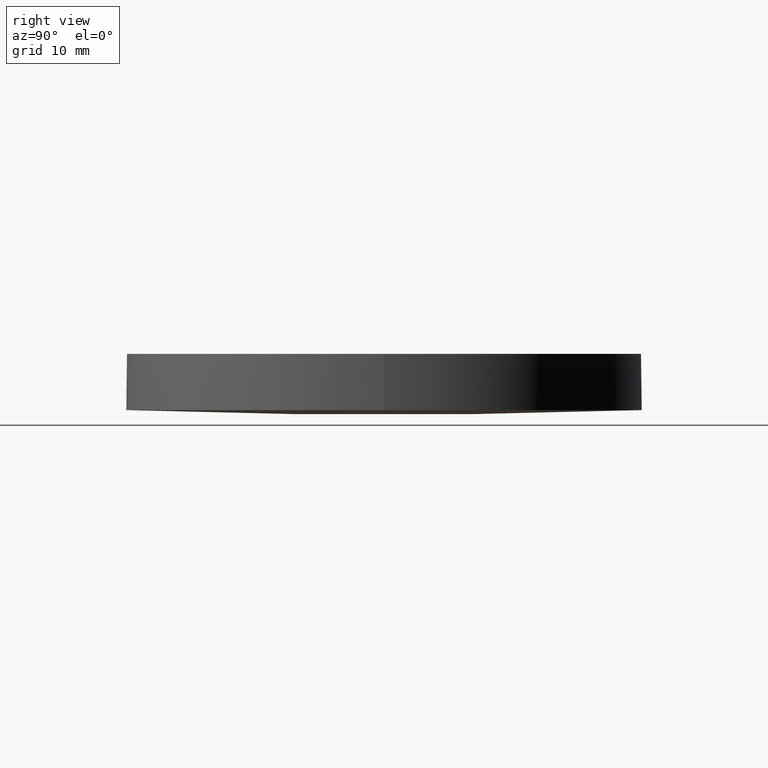
[diagram: clean part render]
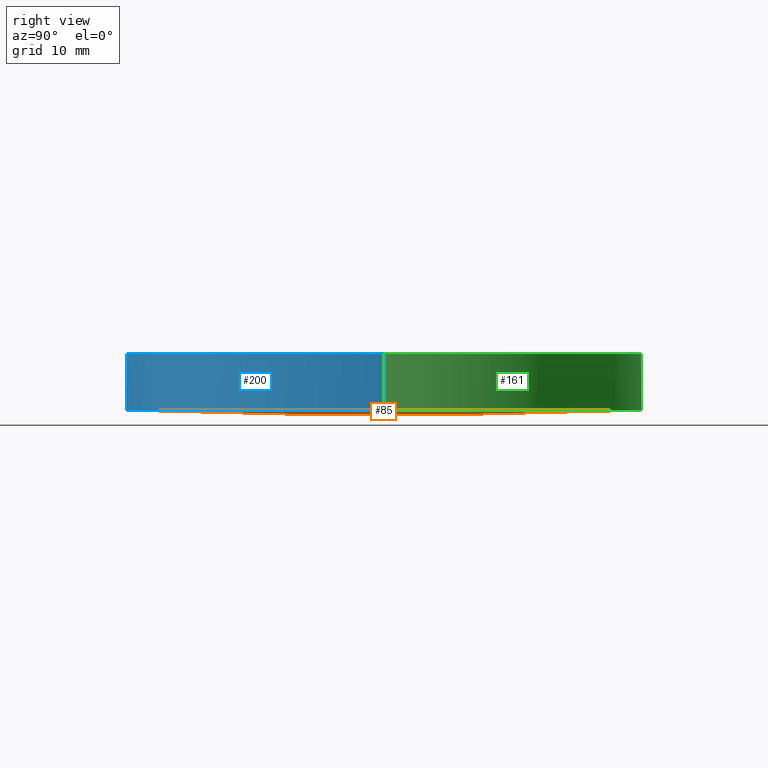
[diagram: same view with three faces highlighted in distinct colors, each labeled with its STEP entity id]
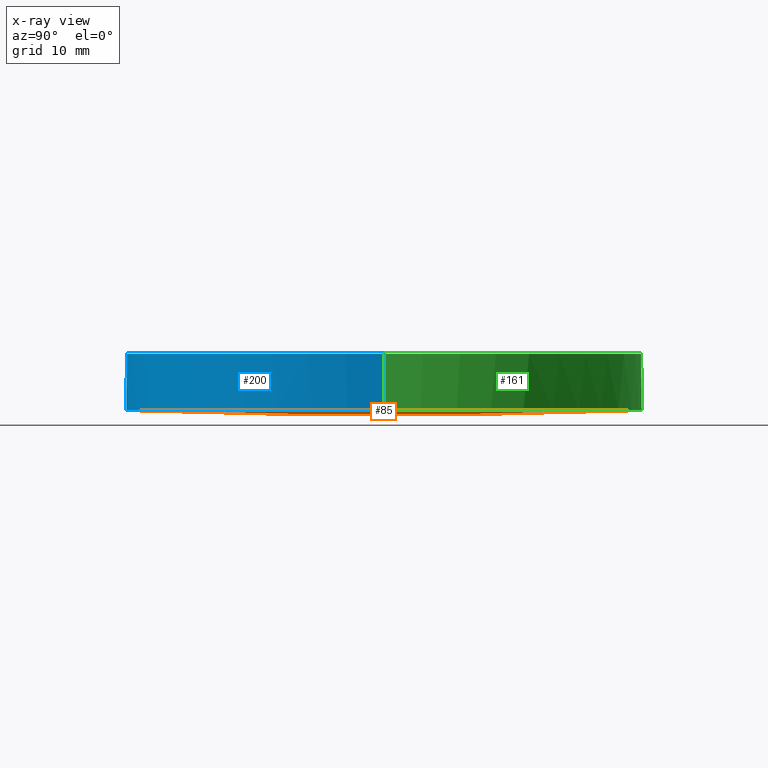
[diagram: x-ray of the same camera — body ghosted, the three highlighted faces saturated]
A machine part, right view with three faces highlighted in distinct colors.
The next image is the same camera in x-ray (body ghosted, the three faces saturated) — at least one of them is partly hidden behind the body in this view.
Their STEP definitions:

[orange] entity #85 — the highlighted face is a freeform B-spline surface patch.
#1 = DIRECTION ( 'NONE',  ( -0.0000000000000000000, -0.0000000000000000000, -1.000000000000000000 ) ) ;
#3 = DIRECTION ( 'NONE',  ( 1.000000000000000000, 0.0000000000000000000, 0.0000000000000000000 ) ) ;
#10 = AXIS2_PLACEMENT_3D ( 'NONE', #166, #26, #24 ) ;
#19 = DIRECTION ( 'NONE',  ( 1.000000000000000000, 0.0000000000000000000, 0.0000000000000000000 ) ) ;
#24 = DIRECTION ( 'NONE',  ( -3.255406916435471100E-016, -1.000000000000000000, -3.109432921510030800E-016 ) ) ;
#25 = AXIS2_PLACEMENT_3D ( 'NONE', #107, #1, #19 ) ;
#26 = DIRECTION ( 'NONE',  ( 1.000000000000000000, -3.255406916435470100E-016, -2.813334110390849800E-016 ) ) ;
#33 = CARTESIAN_POINT ( 'NONE',  ( 25.53577561328555500, -25.70466906950983700, 0.9197954570984757700 ) ) ;
#42 = VERTEX_POINT ( 'NONE', #84 ) ;
#49 = CARTESIAN_POINT ( 'NONE',  ( 17.04175489891612100, -8.571926451094199700, -0.001841013024078599400 ) ) ;
#52 = CIRCLE ( 'NONE', #25, 25.39999999999999900 ) ;
#56 = VERTEX_POINT ( 'NONE', #194 ) ;
#73 = CARTESIAN_POINT ( 'NONE',  ( 9.992007221626412800E-016, 4.884981308350691100E-015, 0.4518724189069909800 ) ) ;
#80 = CARTESIAN_POINT ( 'NONE',  ( 17.04175489891612800, 8.571926451094526600, -0.001841013024075671600 ) ) ;
#81 = CARTESIAN_POINT ( 'NONE',  ( 8.514197117048384600, -25.70466906950983700, 0.4627812480441060900 ) ) ;
#83 = ORIENTED_EDGE ( 'NONE', *, *, #110, .T. ) ;
#84 = CARTESIAN_POINT ( 'NONE',  ( -2.197407186387518400E-014, 25.39999999999935200, 0.4518724189069877600 ) ) ;
#85 = ADVANCED_FACE ( 'NONE', ( #209 ), #160, .T. ) ;
#95 = AXIS2_PLACEMENT_3D ( 'NONE', #73, #167, #3 ) ;
#99 = ORIENTED_EDGE ( 'NONE', *, *, #203, .T. ) ;
#101 = CARTESIAN_POINT ( 'NONE',  ( 25.53577561328557300, 25.70466906951016000, 0.9197954570984757700 ) ) ;
#102 = CARTESIAN_POINT ( 'NONE',  ( 8.521559656318048700, 8.571926451094528300, -0.1543270917221991300 ) ) ;
#103 = CARTESIAN_POINT ( 'NONE',  ( 8.521559656318043400, -8.571926451094197900, -0.1543270917222020500 ) ) ;
#104 = CARTESIAN_POINT ( 'NONE',  ( -3.860765216086626300E-014, -25.70466906950983000, 0.4627812480441084700 ) ) ;
#106 = CIRCLE ( 'NONE', #95, 25.39999999999999900 ) ;
#107 = CARTESIAN_POINT ( 'NONE',  ( 9.992007221626412800E-016, 4.884981308350691100E-015, 0.4518724189069909800 ) ) ;
#110 = EDGE_CURVE ( 'NONE', #42, #56, #52, .T. ) ;
#120 = CARTESIAN_POINT ( 'NONE',  ( -2.762283874210972300E-014, 8.571926451094530100, -0.1543270917221968300 ) ) ;
#122 = CARTESIAN_POINT ( 'NONE',  ( 8.514197117048400500, 25.70466906951016700, 0.4627812480441060900 ) ) ;
#123 = CIRCLE ( 'NONE', #10, 714.1000000000000200 ) ;
#130 = EDGE_LOOP ( 'NONE', ( #138, #99, #83 ) ) ;
#138 = ORIENTED_EDGE ( 'NONE', *, *, #198, .T. ) ;
#157 = VERTEX_POINT ( 'NONE', #193 ) ;
#158 = CARTESIAN_POINT ( 'NONE',  ( 25.55785733727541100, 8.571926451094521200, 0.3030823143207641600 ) ) ;
#159 = CARTESIAN_POINT ( 'NONE',  ( -2.187182066615269500E-014, 25.70466906951016700, 0.4627812480441084700 ) ) ;
#160 =( BOUNDED_SURFACE ( )  B_SPLINE_SURFACE ( 3, 3, ( 
 ( #104, #81, #197, #33 ),
 ( #211, #103, #49, #231 ),
 ( #120, #102, #80, #158 ),
 ( #159, #122, #210, #101 ) ),
 .UNSPECIFIED., .F., .F., .F. ) 
 B_SPLINE_SURFACE_WITH_KNOTS ( ( 4, 4 ),
 ( 4, 4 ),
 ( 0.0000000000000000000, 1.000000000000000000 ),
 ( 0.0000000000000000000, 1.000000000000000000 ),
 .UNSPECIFIED. ) 
 GEOMETRIC_REPRESENTATION_ITEM ( )  RATIONAL_B_SPLINE_SURFACE ( (
 ( 1.000000000000000000, 0.9998932579030901400, 0.9998932579030901400, 1.000000000000000000),
 ( 0.9995679585043699700, 0.9994612625244753100, 0.9994612625244753100, 0.9995679585043699700),
 ( 0.9995679585043699700, 0.9994612625244753100, 0.9994612625244753100, 0.9995679585043699700),
 ( 1.000000000000000000, 0.9998932579030901400, 0.9998932579030901400, 1.000000000000000000) ) ) 
 REPRESENTATION_ITEM ( '' )  SURFACE ( )  );
#166 = CARTESIAN_POINT ( 'NONE',  ( 1.705302565824239900E-013, 2.273736754432320100E-013, 714.1000000000000200 ) ) ;
#167 = DIRECTION ( 'NONE',  ( -0.0000000000000000000, -0.0000000000000000000, -1.000000000000000000 ) ) ;
#193 = CARTESIAN_POINT ( 'NONE',  ( -3.851153899936688400E-014, -25.39999999999912100, 0.4518724189069877600 ) ) ;
#194 = CARTESIAN_POINT ( 'NONE',  ( 25.39999999999999900, 4.884981308350691100E-015, 0.4518724189069909800 ) ) ;
#197 = CARTESIAN_POINT ( 'NONE',  ( 17.02703099921614800, -25.70466906950983700, 0.6151355803498121900 ) ) ;
#198 = EDGE_CURVE ( 'NONE', #56, #157, #106, .T. ) ;
#203 = EDGE_CURVE ( 'NONE', #157, #42, #123, .T. ) ;
#209 = FACE_OUTER_BOUND ( 'NONE', #130, .T. ) ;
#210 = CARTESIAN_POINT ( 'NONE',  ( 17.02703099921616200, 25.70466906951016700, 0.6151355803498121900 ) ) ;
#211 = CARTESIAN_POINT ( 'NONE',  ( -3.320386047332349100E-014, -8.571926451094192600, -0.1543270917221997400 ) ) ;
#231 = CARTESIAN_POINT ( 'NONE',  ( 25.55785733727540400, -8.571926451094201500, 0.3030823143207612100 ) ) ;

[blue] entity #200 — the highlighted cylindrical surface (partial cylindrical patch) has radius 25.4 mm, axis along (0, 0, 1).
#3 = DIRECTION ( 'NONE',  ( 1.000000000000000000, 0.0000000000000000000, 0.0000000000000000000 ) ) ;
#4 = CARTESIAN_POINT ( 'NONE',  ( -25.39999999999999900, 7.995584178184967200E-015, 0.4518724189069909800 ) ) ;
#12 = ORIENTED_EDGE ( 'NONE', *, *, #182, .T. ) ;
#13 = CARTESIAN_POINT ( 'NONE',  ( 9.992007221626412800E-016, 4.884981308350691100E-015, 6.000000000000000000 ) ) ;
#16 = DIRECTION ( 'NONE',  ( 1.000000000000000000, 0.0000000000000000000, 0.0000000000000000000 ) ) ;
#17 = CARTESIAN_POINT ( 'NONE',  ( 25.39999999999999900, 4.884981308350691100E-015, 0.4518724189069909800 ) ) ;
#22 = CARTESIAN_POINT ( 'NONE',  ( 9.992007221626412800E-016, 4.884981308350691100E-015, 0.4518724189069909800 ) ) ;
#28 = VECTOR ( 'NONE', #67, 1000.000000000000000 ) ;
#29 = CYLINDRICAL_SURFACE ( 'NONE', #195, 25.39999999999999900 ) ;
#32 = EDGE_LOOP ( 'NONE', ( #78, #38, #171, #12, #217 ) ) ;
#37 = DIRECTION ( 'NONE',  ( 0.0000000000000000000, 0.0000000000000000000, 1.000000000000000000 ) ) ;
#38 = ORIENTED_EDGE ( 'NONE', *, *, #88, .F. ) ;
#44 = EDGE_CURVE ( 'NONE', #234, #128, #208, .T. ) ;
#48 = LINE ( 'NONE', #228, #28 ) ;
#56 = VERTEX_POINT ( 'NONE', #194 ) ;
#67 = DIRECTION ( 'NONE',  ( 0.0000000000000000000, 0.0000000000000000000, 1.000000000000000000 ) ) ;
#73 = CARTESIAN_POINT ( 'NONE',  ( 9.992007221626412800E-016, 4.884981308350691100E-015, 0.4518724189069909800 ) ) ;
#74 = DIRECTION ( 'NONE',  ( 1.000000000000000000, 0.0000000000000000000, 0.0000000000000000000 ) ) ;
#77 = EDGE_CURVE ( 'NONE', #205, #128, #48, .T. ) ;
#78 = ORIENTED_EDGE ( 'NONE', *, *, #77, .F. ) ;
#82 = DIRECTION ( 'NONE',  ( 1.000000000000000000, 0.0000000000000000000, 0.0000000000000000000 ) ) ;
#88 = EDGE_CURVE ( 'NONE', #157, #205, #224, .T. ) ;
#94 = FACE_OUTER_BOUND ( 'NONE', #32, .T. ) ;
#95 = AXIS2_PLACEMENT_3D ( 'NONE', #73, #167, #3 ) ;
#106 = CIRCLE ( 'NONE', #95, 25.39999999999999900 ) ;
#114 = VECTOR ( 'NONE', #37, 1000.000000000000000 ) ;
#126 = DIRECTION ( 'NONE',  ( -0.0000000000000000000, -0.0000000000000000000, -1.000000000000000000 ) ) ;
#128 = VERTEX_POINT ( 'NONE', #177 ) ;
#133 = LINE ( 'NONE', #17, #114 ) ;
#144 = DIRECTION ( 'NONE',  ( -0.0000000000000000000, -0.0000000000000000000, -1.000000000000000000 ) ) ;
#146 = AXIS2_PLACEMENT_3D ( 'NONE', #13, #144, #82 ) ;
#157 = VERTEX_POINT ( 'NONE', #193 ) ;
#165 = AXIS2_PLACEMENT_3D ( 'NONE', #235, #126, #16 ) ;
#167 = DIRECTION ( 'NONE',  ( -0.0000000000000000000, -0.0000000000000000000, -1.000000000000000000 ) ) ;
#171 = ORIENTED_EDGE ( 'NONE', *, *, #198, .F. ) ;
#177 = CARTESIAN_POINT ( 'NONE',  ( -25.39999999999999900, 7.995584178184967200E-015, 6.000000000000000000 ) ) ;
#182 = EDGE_CURVE ( 'NONE', #56, #234, #133, .T. ) ;
#193 = CARTESIAN_POINT ( 'NONE',  ( -3.851153899936688400E-014, -25.39999999999912100, 0.4518724189069877600 ) ) ;
#194 = CARTESIAN_POINT ( 'NONE',  ( 25.39999999999999900, 4.884981308350691100E-015, 0.4518724189069909800 ) ) ;
#195 = AXIS2_PLACEMENT_3D ( 'NONE', #22, #220, #74 ) ;
#198 = EDGE_CURVE ( 'NONE', #56, #157, #106, .T. ) ;
#200 = ADVANCED_FACE ( 'NONE', ( #94 ), #29, .T. ) ;
#205 = VERTEX_POINT ( 'NONE', #4 ) ;
#208 = CIRCLE ( 'NONE', #146, 25.39999999999999900 ) ;
#216 = CARTESIAN_POINT ( 'NONE',  ( 25.39999999999999900, 4.884981308350691100E-015, 6.000000000000000000 ) ) ;
#217 = ORIENTED_EDGE ( 'NONE', *, *, #44, .T. ) ;
#220 = DIRECTION ( 'NONE',  ( 0.0000000000000000000, 0.0000000000000000000, 1.000000000000000000 ) ) ;
#224 = CIRCLE ( 'NONE', #165, 25.39999999999999900 ) ;
#228 = CARTESIAN_POINT ( 'NONE',  ( -25.39999999999999900, 7.995584178184967200E-015, 0.4518724189069909800 ) ) ;
#234 = VERTEX_POINT ( 'NONE', #216 ) ;
#235 = CARTESIAN_POINT ( 'NONE',  ( 9.992007221626412800E-016, 4.884981308350691100E-015, 0.4518724189069909800 ) ) ;

[green] entity #161 — the highlighted cylindrical surface (partial cylindrical patch) has radius 25.4 mm, axis along (0, 0, 1).
#1 = DIRECTION ( 'NONE',  ( -0.0000000000000000000, -0.0000000000000000000, -1.000000000000000000 ) ) ;
#4 = CARTESIAN_POINT ( 'NONE',  ( -25.39999999999999900, 7.995584178184967200E-015, 0.4518724189069909800 ) ) ;
#5 = ORIENTED_EDGE ( 'NONE', *, *, #77, .T. ) ;
#15 = ORIENTED_EDGE ( 'NONE', *, *, #182, .F. ) ;
#17 = CARTESIAN_POINT ( 'NONE',  ( 25.39999999999999900, 4.884981308350691100E-015, 0.4518724189069909800 ) ) ;
#18 = CARTESIAN_POINT ( 'NONE',  ( 9.992007221626412800E-016, 4.884981308350691100E-015, 0.4518724189069909800 ) ) ;
#19 = DIRECTION ( 'NONE',  ( 1.000000000000000000, 0.0000000000000000000, 0.0000000000000000000 ) ) ;
#25 = AXIS2_PLACEMENT_3D ( 'NONE', #107, #1, #19 ) ;
#28 = VECTOR ( 'NONE', #67, 1000.000000000000000 ) ;
#34 = EDGE_CURVE ( 'NONE', #128, #234, #213, .T. ) ;
#36 = EDGE_LOOP ( 'NONE', ( #185, #5, #40, #15, #152 ) ) ;
#37 = DIRECTION ( 'NONE',  ( 0.0000000000000000000, 0.0000000000000000000, 1.000000000000000000 ) ) ;
#40 = ORIENTED_EDGE ( 'NONE', *, *, #34, .T. ) ;
#42 = VERTEX_POINT ( 'NONE', #84 ) ;
#48 = LINE ( 'NONE', #228, #28 ) ;
#52 = CIRCLE ( 'NONE', #25, 25.39999999999999900 ) ;
#56 = VERTEX_POINT ( 'NONE', #194 ) ;
#58 = DIRECTION ( 'NONE',  ( 1.000000000000000000, 0.0000000000000000000, 0.0000000000000000000 ) ) ;
#65 = DIRECTION ( 'NONE',  ( -0.0000000000000000000, -0.0000000000000000000, -1.000000000000000000 ) ) ;
#67 = DIRECTION ( 'NONE',  ( 0.0000000000000000000, 0.0000000000000000000, 1.000000000000000000 ) ) ;
#72 = DIRECTION ( 'NONE',  ( 1.000000000000000000, 0.0000000000000000000, 0.0000000000000000000 ) ) ;
#77 = EDGE_CURVE ( 'NONE', #205, #128, #48, .T. ) ;
#84 = CARTESIAN_POINT ( 'NONE',  ( -2.197407186387518400E-014, 25.39999999999935200, 0.4518724189069877600 ) ) ;
#105 = CARTESIAN_POINT ( 'NONE',  ( 9.992007221626412800E-016, 4.884981308350691100E-015, 6.000000000000000000 ) ) ;
#107 = CARTESIAN_POINT ( 'NONE',  ( 9.992007221626412800E-016, 4.884981308350691100E-015, 0.4518724189069909800 ) ) ;
#110 = EDGE_CURVE ( 'NONE', #42, #56, #52, .T. ) ;
#114 = VECTOR ( 'NONE', #37, 1000.000000000000000 ) ;
#118 = AXIS2_PLACEMENT_3D ( 'NONE', #18, #178, #72 ) ;
#128 = VERTEX_POINT ( 'NONE', #177 ) ;
#133 = LINE ( 'NONE', #17, #114 ) ;
#142 = CIRCLE ( 'NONE', #155, 25.39999999999999900 ) ;
#150 = CARTESIAN_POINT ( 'NONE',  ( 9.992007221626412800E-016, 4.884981308350691100E-015, 0.4518724189069909800 ) ) ;
#152 = ORIENTED_EDGE ( 'NONE', *, *, #110, .F. ) ;
#155 = AXIS2_PLACEMENT_3D ( 'NONE', #150, #181, #58 ) ;
#161 = ADVANCED_FACE ( 'NONE', ( #170 ), #212, .T. ) ;
#170 = FACE_OUTER_BOUND ( 'NONE', #36, .T. ) ;
#173 = DIRECTION ( 'NONE',  ( 1.000000000000000000, 0.0000000000000000000, 0.0000000000000000000 ) ) ;
#177 = CARTESIAN_POINT ( 'NONE',  ( -25.39999999999999900, 7.995584178184967200E-015, 6.000000000000000000 ) ) ;
#178 = DIRECTION ( 'NONE',  ( 0.0000000000000000000, 0.0000000000000000000, 1.000000000000000000 ) ) ;
#181 = DIRECTION ( 'NONE',  ( -0.0000000000000000000, -0.0000000000000000000, -1.000000000000000000 ) ) ;
#182 = EDGE_CURVE ( 'NONE', #56, #234, #133, .T. ) ;
#185 = ORIENTED_EDGE ( 'NONE', *, *, #218, .F. ) ;
#194 = CARTESIAN_POINT ( 'NONE',  ( 25.39999999999999900, 4.884981308350691100E-015, 0.4518724189069909800 ) ) ;
#205 = VERTEX_POINT ( 'NONE', #4 ) ;
#212 = CYLINDRICAL_SURFACE ( 'NONE', #118, 25.39999999999999900 ) ;
#213 = CIRCLE ( 'NONE', #233, 25.39999999999999900 ) ;
#216 = CARTESIAN_POINT ( 'NONE',  ( 25.39999999999999900, 4.884981308350691100E-015, 6.000000000000000000 ) ) ;
#218 = EDGE_CURVE ( 'NONE', #205, #42, #142, .T. ) ;
#228 = CARTESIAN_POINT ( 'NONE',  ( -25.39999999999999900, 7.995584178184967200E-015, 0.4518724189069909800 ) ) ;
#233 = AXIS2_PLACEMENT_3D ( 'NONE', #105, #65, #173 ) ;
#234 = VERTEX_POINT ( 'NONE', #216 ) ;